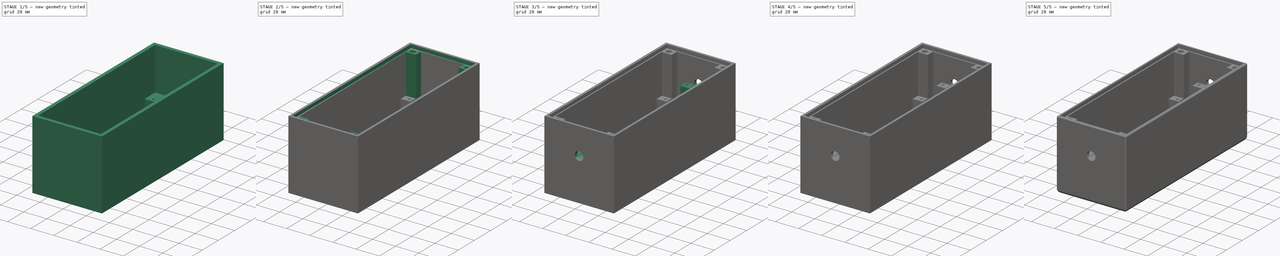
[diagram: build sequence overview — one tinted view per stage of 5, left to right]
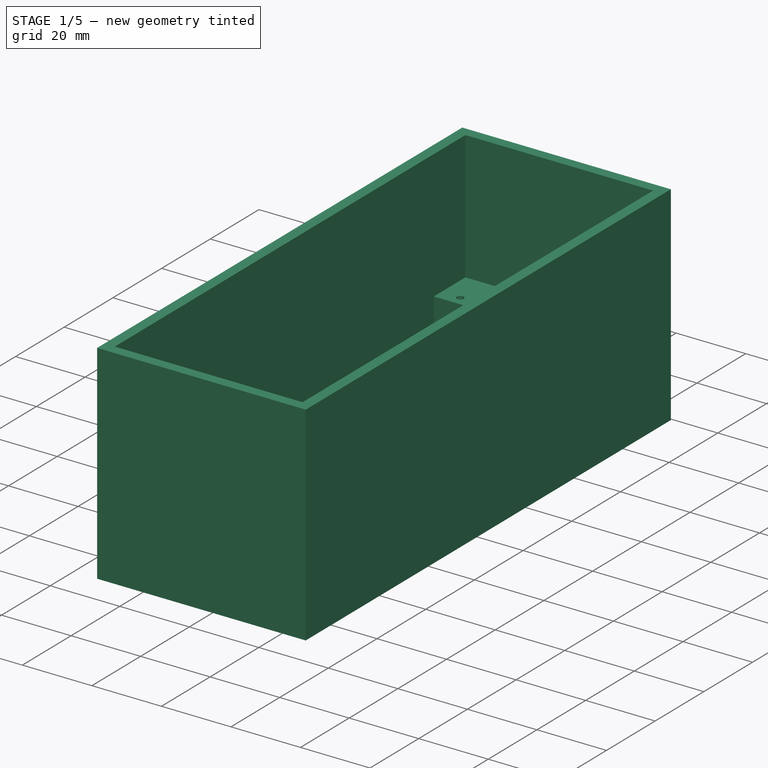
[diagram: stage 1 of 5 — iso view after this stage's code; geometry added in this stage tinted green]
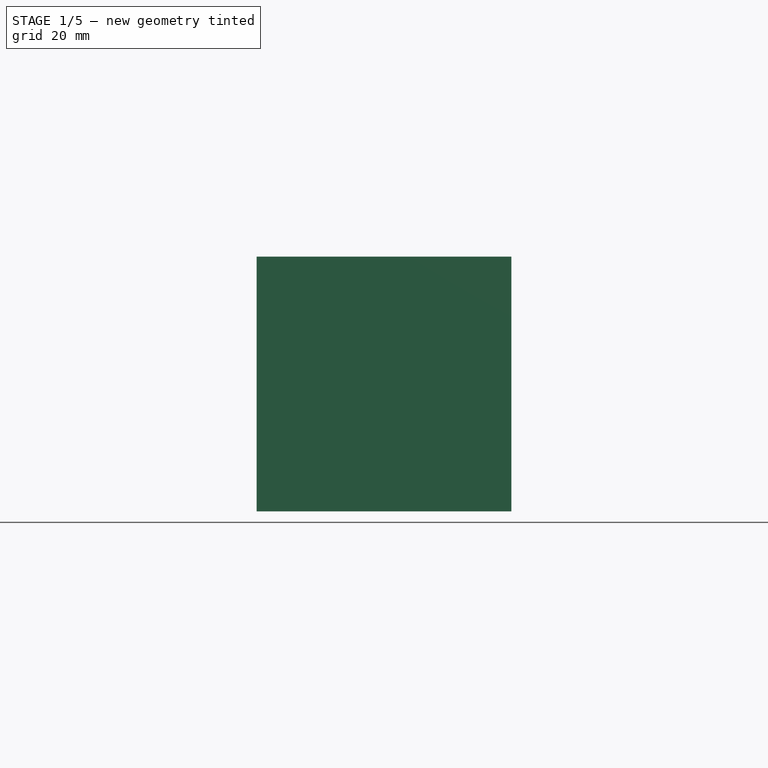
[diagram: stage 1 of 5 — front view after this stage's code; geometry added in this stage tinted green]
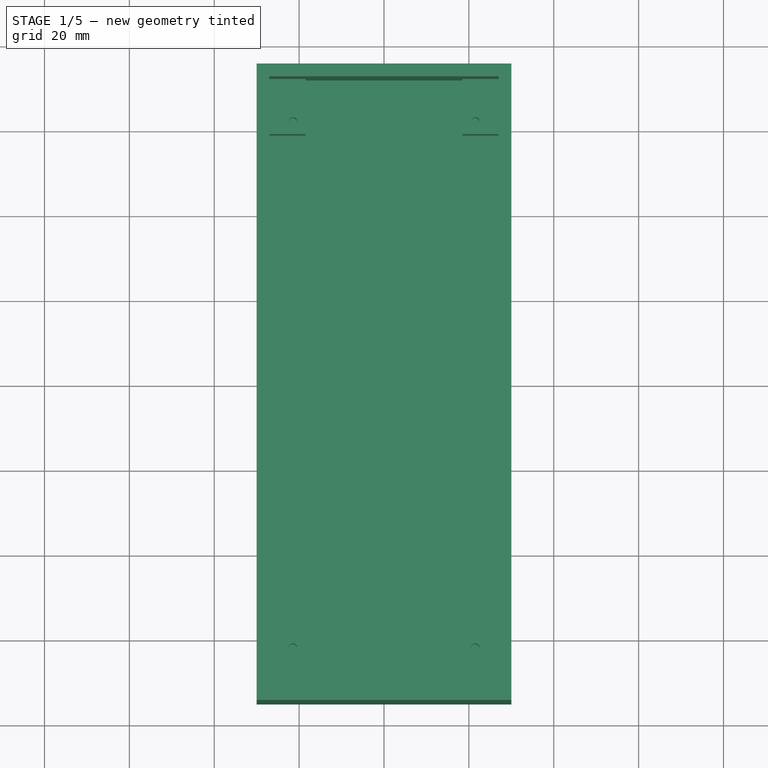
[diagram: stage 1 of 5 — top view after this stage's code; geometry added in this stage tinted green]
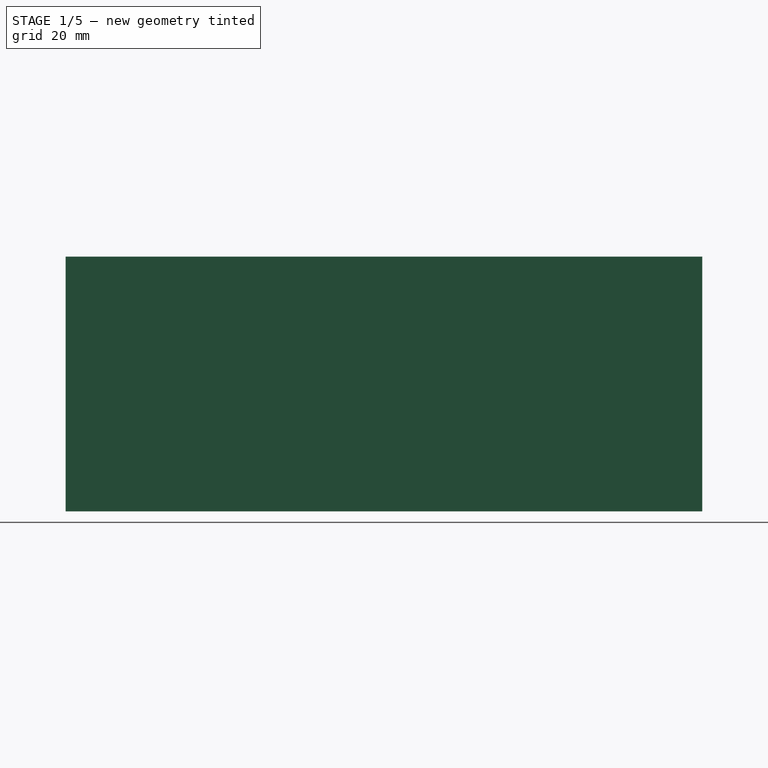
[diagram: stage 1 of 5 — right view after this stage's code; geometry added in this stage tinted green]
FCSTD DOCUMENT  (FreeCAD 0.19R24276 (Git))
Label: eBike_12v_charger
License: All rights reserved
LicenseURL: http://en.wikipedia.org/wiki/All_rights_reserved
objects: Sketcher::SketchObject×12, PartDesign::Pocket×8, PartDesign::Pad×4, PartDesign::Fillet×3, PartDesign::LinearPattern×2, PartDesign::Chamfer×1, PartDesign::Body×1
note: 47 computed .brp shape members not serialized (recipe doc carries the construction recipe); baked Part::Feature solids carry a one-line shape summary decoded from their .brp

FEATURE [Sketcher::SketchObject] Sketch
  FullyConstrained = true
  MapMode = 5
  Support = -> [XY_Plane]
  sketch-geometry (4):
    g0: LineSegment StartX=-30 StartY=75 StartZ=0 EndX=30 EndY=75 EndZ=0
    g1: LineSegment StartX=30 StartY=75 StartZ=0 EndX=30 EndY=-75 EndZ=0
    g2: LineSegment StartX=30 StartY=-75 StartZ=0 EndX=-30 EndY=-75 EndZ=0
    g3: LineSegment StartX=-30 StartY=-75 StartZ=0 EndX=-30 EndY=75 EndZ=0
  constraints (10):
    c: Coincident(g0,g1)
    c: Coincident(g1,g2)
    c: Coincident(g2,g3)
    c: Coincident(g3,g0)
    c: Horizontal(g2)
    c: Vertical(g3)
    c: DistanceX(g0,g0) = 60
    c: DistanceY(g1,g1) = 150
    c: Symmetric(g0,g0,g-2)
    c: Symmetric(g1,g0,g-1)
FEATURE [PartDesign::Pad] Pad
  Direction = (1,1,1)
  Length = 60
  Length2 = 100
  Profile = -> Sketch
  Type = 0
FEATURE [Sketcher::SketchObject] Sketch001
  FullyConstrained = true
  MapMode = 5
  Placement = pos=(0,0,60) rot=(0,0,1;0rad)
  Support = -> [Pad]
  sketch-geometry (4):
    g0: LineSegment StartX=-27 StartY=72 StartZ=0 EndX=27 EndY=72 EndZ=0
    g1: LineSegment StartX=27 StartY=72 StartZ=0 EndX=27 EndY=-72 EndZ=0
    g2: LineSegment StartX=27 StartY=-72 StartZ=0 EndX=-27 EndY=-72 EndZ=0
    g3: LineSegment StartX=-27 StartY=-72 StartZ=0 EndX=-27 EndY=72 EndZ=0
  constraints (10):
    c: Coincident(g0,g1)
    c: Coincident(g1,g2)
    c: Coincident(g2,g3)
    c: Coincident(g3,g0)
    c: Horizontal(g2)
    c: Vertical(g3)
    c: DistanceX(g0,g0) = 54
    c: DistanceY(g1,g1) = 144
    c: Symmetric(g0,g0,g-2)
    c: Symmetric(g0,g1,g-1)
FEATURE [PartDesign::Pocket] Pocket
  BaseFeature = -> Pad
  Length = 57
  Length2 = 100
  Profile = -> Sketch001
  Type = 0
FEATURE [Sketcher::SketchObject] Sketch002
  ExternalGeometry = -> [Pocket]
  FullyConstrained = true
  MapMode = 5
  Placement = pos=(0,0,3) rot=(0,0,1;0rad)
  Support = -> [Pocket]
  sketch-geometry (16):
    g0: LineSegment StartX=27 StartY=72 StartZ=0 EndX=18.5 EndY=72 EndZ=0
    g1: LineSegment StartX=18.5 StartY=72 StartZ=0 EndX=18.5 EndY=59 EndZ=0
    g2: LineSegment StartX=18.5 StartY=59 StartZ=0 EndX=27 EndY=59 EndZ=0
    g3: LineSegment StartX=27 StartY=59 StartZ=0 EndX=27 EndY=72 EndZ=0
    g4: LineSegment StartX=27 StartY=-72 StartZ=0 EndX=18.5 EndY=-72 EndZ=0
    g5: LineSegment StartX=18.5 StartY=-72 StartZ=0 EndX=18.5 EndY=-59 EndZ=0
    g6: LineSegment StartX=18.5 StartY=-59 StartZ=0 EndX=27 EndY=-59 EndZ=0
    g7: LineSegment StartX=27 StartY=-59 StartZ=0 EndX=27 EndY=-72 EndZ=0
    g8: LineSegment StartX=-27 StartY=-72 StartZ=0 EndX=-18.5 EndY=-72 EndZ=0
    g9: LineSegment StartX=-18.5 StartY=-72 StartZ=0 EndX=-18.5 EndY=-59 EndZ=0
    g10: LineSegment StartX=-18.5 StartY=-59 StartZ=0 EndX=-27 EndY=-59 EndZ=0
    g11: LineSegment StartX=-27 StartY=-59 StartZ=0 EndX=-27 EndY=-72 EndZ=0
    g12: LineSegment StartX=-27 StartY=72 StartZ=0 EndX=-18.5 EndY=72 EndZ=0
    g13: LineSegment StartX=-18.5 StartY=72 StartZ=0 EndX=-18.5 EndY=59 EndZ=0
    g14: LineSegment StartX=-18.5 StartY=59 StartZ=0 EndX=-27 EndY=59 EndZ=0
    g15: LineSegment StartX=-27 StartY=59 StartZ=0 EndX=-27 EndY=72 EndZ=0
  constraints (44):
    c: Coincident(g0,g1)
    c: Coincident(g1,g2)
    c: Coincident(g2,g3)
    c: Coincident(g3,g0)
    c: Horizontal(g0)
    c: Horizontal(g2)
    c: Vertical(g1)
    c: Vertical(g3)
    c: Coincident(g0,g-4)
    c: Coincident(g4,g5)
    c: Coincident(g5,g6)
    c: Coincident(g6,g7)
    c: Coincident(g7,g4)
    c: Horizontal(g4)
    c: Horizontal(g6)
    c: Vertical(g5)
    c: Vertical(g7)
    c: Coincident(g4,g-4)
    c: Coincident(g8,g9)
    c: Coincident(g9,g10)
    c: Coincident(g10,g11)
    c: Coincident(g11,g8)
    c: Horizontal(g8)
    c: Horizontal(g10)
    c: Vertical(g9)
    c: Vertical(g11)
    c: Coincident(g8,g-3)
    c: Coincident(g12,g13)
    c: Coincident(g13,g14)
    c: Coincident(g14,g15)
    c: Coincident(g15,g12)
    c: Horizontal(g12)
    c: Horizontal(g14)
    c: Vertical(g13)
    c: Vertical(g15)
    c: Coincident(g12,g-3)
    c: DistanceX(g14,g14) = 8.5
    c: Equal(g2,g6)
    c: Equal(g6,g10)
    c: DistanceY(g13,g13) = 13
    c: Equal(g13,g1)
    c: Equal(g1,g9)
    c: Equal(g9,g5)
    c: Equal(g14,g2)
FEATURE [PartDesign::Pad] Pad001
  BaseFeature = -> Pocket
  Direction = (1,1,1)
  Length = 20
  Length2 = 100
  Profile = -> Sketch002
  Type = 0
FEATURE [Sketcher::SketchObject] Sketch003
  FullyConstrained = true
  MapMode = 5
  Placement = pos=(0,0,23) rot=(0,0,1;0rad)
  Support = -> [Pad001]
  sketch-geometry (8):
    g0: LineSegment StartX=-21.5 StartY=62 StartZ=0 EndX=21.5 EndY=62 EndZ=0
    g1: LineSegment StartX=21.5 StartY=62 StartZ=0 EndX=21.5 EndY=-62 EndZ=0
    g2: LineSegment StartX=21.5 StartY=-62 StartZ=0 EndX=-21.5 EndY=-62 EndZ=0
    g3: LineSegment StartX=-21.5 StartY=-62 StartZ=0 EndX=-21.5 EndY=62 EndZ=0
    g4: Circle CenterX=-21.5 CenterY=62 CenterZ=0 NormalX=0 NormalY=0 NormalZ=1 AngleXU=0 Radius=1
    g5: Circle CenterX=21.5 CenterY=62 CenterZ=0 NormalX=0 NormalY=0 NormalZ=1 AngleXU=0 Radius=1
    g6: Circle CenterX=-21.5 CenterY=-62 CenterZ=0 NormalX=0 NormalY=0 NormalZ=1 AngleXU=0 Radius=1
    g7: Circle CenterX=21.5 CenterY=-62 CenterZ=0 NormalX=0 NormalY=0 NormalZ=1 AngleXU=0 Radius=1
  constraints (18):
    c: Coincident(g0,g1)
    c: Coincident(g1,g2)
    c: Coincident(g2,g3)
    c: Coincident(g3,g0)
    c: Horizontal(g2)
    c: Vertical(g3)
    c: DistanceX(g0,g0) = 43
    c: DistanceY(g1,g1) = 124
    c: Symmetric(g0,g0,g-2)
    c: Symmetric(g0,g1,g-1)
    c: Coincident(g4,g0)
    c: Coincident(g5,g0)
    c: Coincident(g6,g2)
    c: Coincident(g7,g1)
    c: Radius(g6) = 1
    c: Equal(g6,g7)
    c: Equal(g6,g5)
    c: Equal(g6,g4)
FEATURE [PartDesign::Pocket] Pocket001  label="schroefgaten"
  BaseFeature = -> Pad001
  Length = 11
  Length2 = 100
  Profile = -> Sketch003
  Type = 0
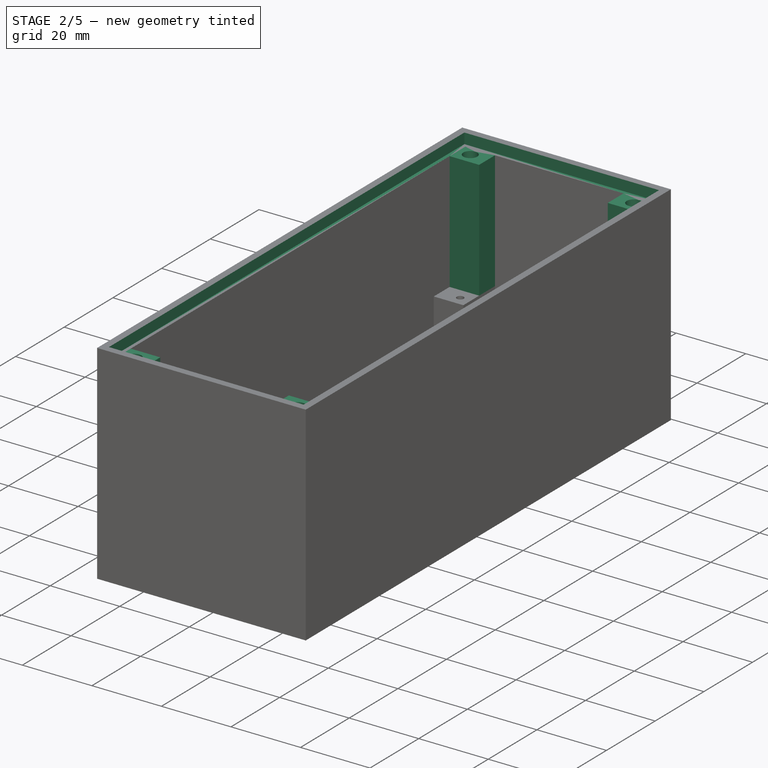
[diagram: stage 2 of 5 — iso view after this stage's code; geometry added in this stage tinted green]
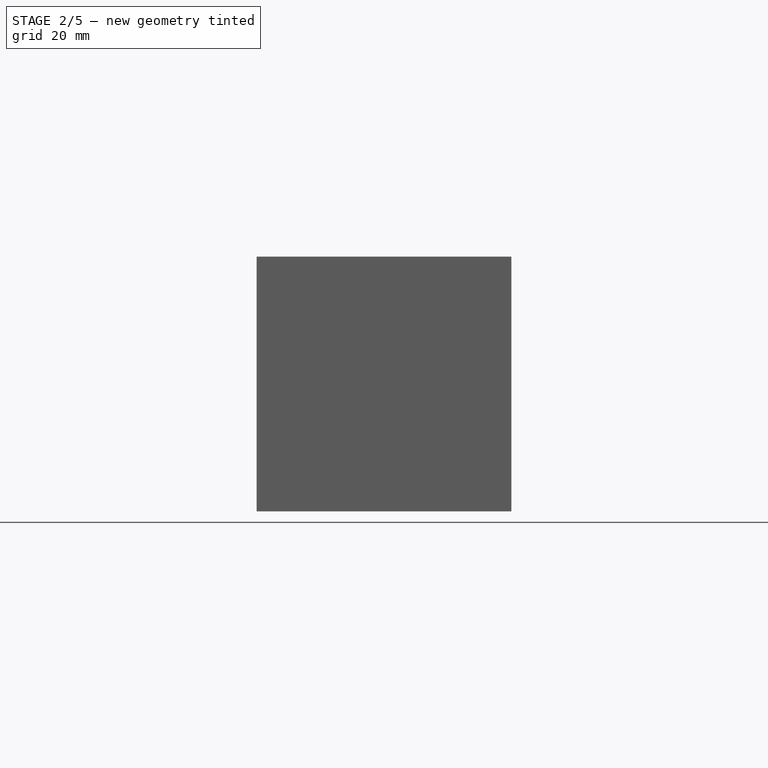
[diagram: stage 2 of 5 — front view after this stage's code; geometry added in this stage tinted green]
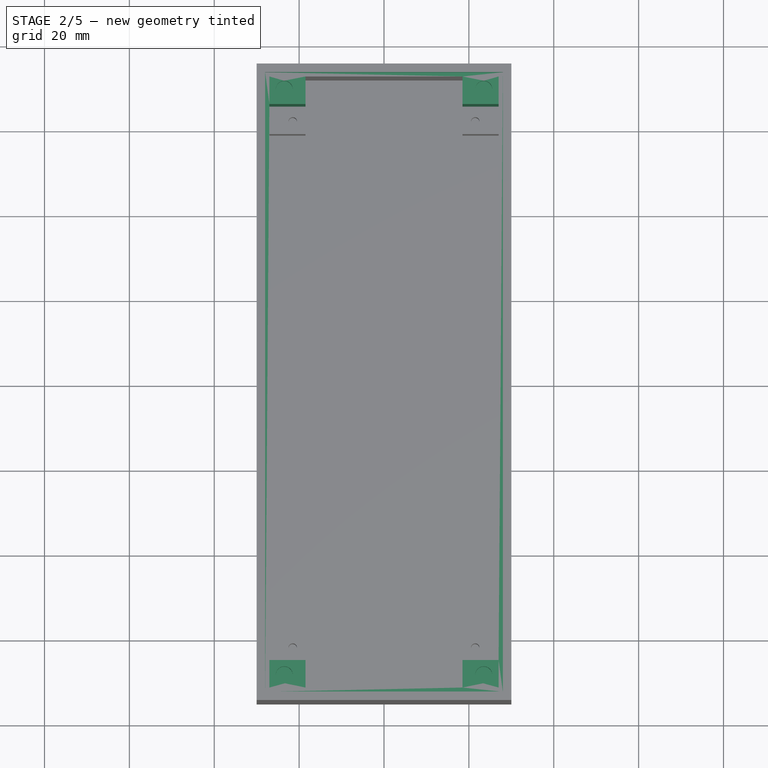
[diagram: stage 2 of 5 — top view after this stage's code; geometry added in this stage tinted green]
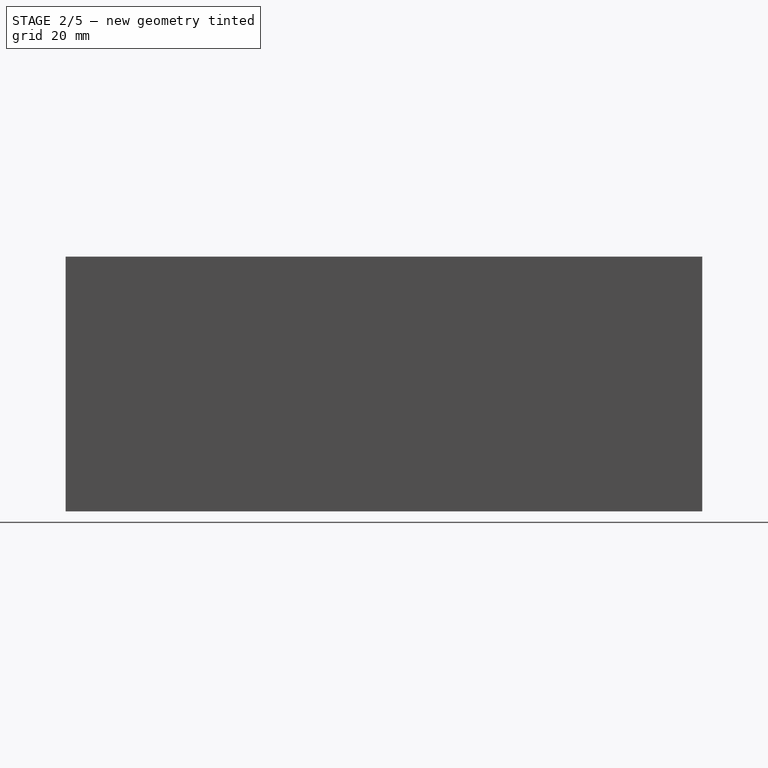
[diagram: stage 2 of 5 — right view after this stage's code; geometry added in this stage tinted green]
FEATURE [Sketcher::SketchObject] Sketch004
  ExternalGeometry = -> [Pocket001]
  FullyConstrained = true
  MapMode = 5
  Placement = pos=(0,0,23) rot=(0,0,1;0rad)
  Support = -> [Pocket001]
  sketch-geometry (16):
    g0: LineSegment StartX=-18.5 StartY=72 StartZ=0 EndX=-27 EndY=72 EndZ=0
    g1: LineSegment StartX=-27 StartY=72 StartZ=0 EndX=-27 EndY=65.5 EndZ=0
    g2: LineSegment StartX=-27 StartY=65.5 StartZ=0 EndX=-18.5 EndY=65.5 EndZ=0
    g3: LineSegment StartX=-18.5 StartY=65.5 StartZ=0 EndX=-18.5 EndY=72 EndZ=0
    g4: LineSegment StartX=18.5 StartY=72 StartZ=0 EndX=27 EndY=72 EndZ=0
    g5: LineSegment StartX=27 StartY=72 StartZ=0 EndX=27 EndY=65.5 EndZ=0
    g6: LineSegment StartX=27 StartY=65.5 StartZ=0 EndX=18.5 EndY=65.5 EndZ=0
    g7: LineSegment StartX=18.5 StartY=65.5 StartZ=0 EndX=18.5 EndY=72 EndZ=0
    g8: LineSegment StartX=-18.5 StartY=-72 StartZ=0 EndX=-27 EndY=-72 EndZ=0
    g9: LineSegment StartX=-27 StartY=-72 StartZ=0 EndX=-27 EndY=-65.5 EndZ=0
    g10: LineSegment StartX=-27 StartY=-65.5 StartZ=0 EndX=-18.5 EndY=-65.5 EndZ=0
    g11: LineSegment StartX=-18.5 StartY=-65.5 StartZ=0 EndX=-18.5 EndY=-72 EndZ=0
    g12: LineSegment StartX=18.5 StartY=-72 StartZ=0 EndX=27 EndY=-72 EndZ=0
    g13: LineSegment StartX=27 StartY=-72 StartZ=0 EndX=27 EndY=-65.5 EndZ=0
    g14: LineSegment StartX=27 StartY=-65.5 StartZ=0 EndX=18.5 EndY=-65.5 EndZ=0
    g15: LineSegment StartX=18.5 StartY=-65.5 StartZ=0 EndX=18.5 EndY=-72 EndZ=0
  constraints (44):
    c: Coincident(g0,g1)
    c: Coincident(g1,g2)
    c: Coincident(g2,g3)
    c: Coincident(g3,g0)
    c: Horizontal(g0)
    c: Horizontal(g2)
    c: Vertical(g1)
    c: Vertical(g3)
    c: Coincident(g0,g-7)
    c: PointOnObject(g1,g-3)
    c: Coincident(g4,g5)
    c: Coincident(g5,g6)
    c: Coincident(g6,g7)
    c: Coincident(g7,g4)
    c: Horizontal(g4)
    c: Horizontal(g6)
    c: Vertical(g5)
    c: Vertical(g7)
    c: Coincident(g4,g-8)
    c: PointOnObject(g5,g-5)
    c: Coincident(g8,g9)
    c: Coincident(g9,g10)
    c: Coincident(g10,g11)
    c: Coincident(g11,g8)
    c: Horizontal(g8)
    c: Horizontal(g10)
    c: Vertical(g9)
    c: Vertical(g11)
    c: Coincident(g8,g-9)
    c: PointOnObject(g9,g-4)
    c: Coincident(g12,g13)
    c: Coincident(g13,g14)
    c: Coincident(g14,g15)
    c: Coincident(g15,g12)
    c: Horizontal(g12)
    c: Horizontal(g14)
    c: Vertical(g13)
    c: Vertical(g15)
    c: Coincident(g12,g-10)
    c: PointOnObject(g13,g-6)
    c: DistanceY(g3,g3) = 6.5
    c: Equal(g3,g7)
    c: Equal(g7,g15)
    c: Equal(g15,g11)
FEATURE [PartDesign::Pad] Pad002
  BaseFeature = -> Pocket001
  Direction = (1,1,1)
  Length = 34
  Length2 = 100
  Profile = -> Sketch004
  Type = 0
FEATURE [Sketcher::SketchObject] Sketch005
  FullyConstrained = true
  MapMode = 5
  Placement = pos=(0,0,57) rot=(0,0,1;0rad)
  Support = -> [Pad002]
  sketch-geometry (8):
    g0: LineSegment StartX=-23.5 StartY=69 StartZ=0 EndX=23.5 EndY=69 EndZ=0
    g1: LineSegment StartX=23.5 StartY=69 StartZ=0 EndX=23.5 EndY=-69 EndZ=0
    g2: LineSegment StartX=23.5 StartY=-69 StartZ=0 EndX=-23.5 EndY=-69 EndZ=0
    g3: LineSegment StartX=-23.5 StartY=-69 StartZ=0 EndX=-23.5 EndY=69 EndZ=0
    g4: Circle CenterX=-23.5 CenterY=69 CenterZ=0 NormalX=0 NormalY=0 NormalZ=1 AngleXU=0 Radius=2
    g5: Circle CenterX=23.5 CenterY=69 CenterZ=0 NormalX=0 NormalY=0 NormalZ=1 AngleXU=0 Radius=2
    g6: Circle CenterX=23.5 CenterY=-69 CenterZ=0 NormalX=0 NormalY=0 NormalZ=1 AngleXU=0 Radius=2
    g7: Circle CenterX=-23.5 CenterY=-69 CenterZ=0 NormalX=0 NormalY=0 NormalZ=1 AngleXU=0 Radius=2
  constraints (18):
    c: Coincident(g0,g1)
    c: Coincident(g1,g2)
    c: Coincident(g2,g3)
    c: Coincident(g3,g0)
    c: Horizontal(g2)
    c: Vertical(g3)
    c: DistanceY(g1,g1) = 138
    c: DistanceX(g0,g0) = 47
    c: Symmetric(g0,g0,g-2)
    c: Symmetric(g0,g1,g-1)
    c: Coincident(g4,g0)
    c: Coincident(g5,g0)
    c: Coincident(g6,g1)
    c: Coincident(g7,g2)
    c: Radius(g4) = 2
    c: Equal(g4,g5)
    c: Equal(g4,g6)
    c: Equal(g4,g7)
FEATURE [PartDesign::Pocket] Pocket002  label="insert_gaten"
  BaseFeature = -> Pad002
  Length = 5
  Length2 = 100
  Profile = -> Sketch005
  Type = 0
FEATURE [Sketcher::SketchObject] Sketch006
  FullyConstrained = true
  MapMode = 5
  Placement = pos=(0,0,60) rot=(0,0,1;0rad)
  Support = -> [Pocket002]
  sketch-geometry (4):
    g0: LineSegment StartX=-28 StartY=73 StartZ=0 EndX=28 EndY=73 EndZ=0
    g1: LineSegment StartX=28 StartY=73 StartZ=0 EndX=28 EndY=-73 EndZ=0
    g2: LineSegment StartX=28 StartY=-73 StartZ=0 EndX=-28 EndY=-73 EndZ=0
    g3: LineSegment StartX=-28 StartY=-73 StartZ=0 EndX=-28 EndY=73 EndZ=0
  constraints (10):
    c: Coincident(g0,g1)
    c: Coincident(g1,g2)
    c: Coincident(g2,g3)
    c: Coincident(g3,g0)
    c: Horizontal(g2)
    c: Vertical(g3)
    c: DistanceX(g0,g0) = 56
    c: DistanceY(g1,g1) = 146
    c: Symmetric(g0,g0,g-2)
    c: Symmetric(g0,g1,g-1)
FEATURE [PartDesign::Pocket] Pocket003
  BaseFeature = -> Pocket002
  Length = 3
  Length2 = 100
  Profile = -> Sketch006
  Type = 0
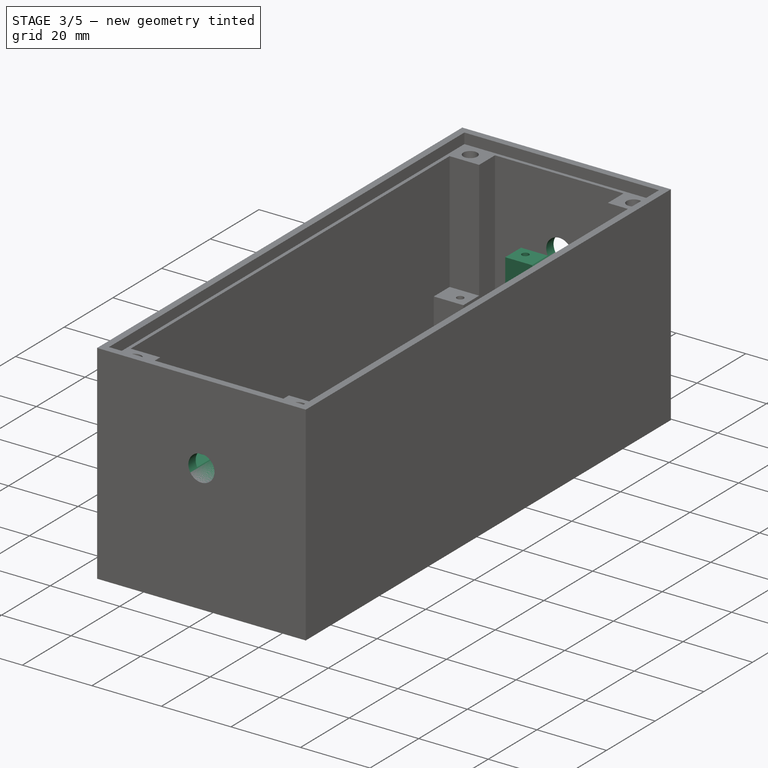
[diagram: stage 3 of 5 — iso view after this stage's code; geometry added in this stage tinted green]
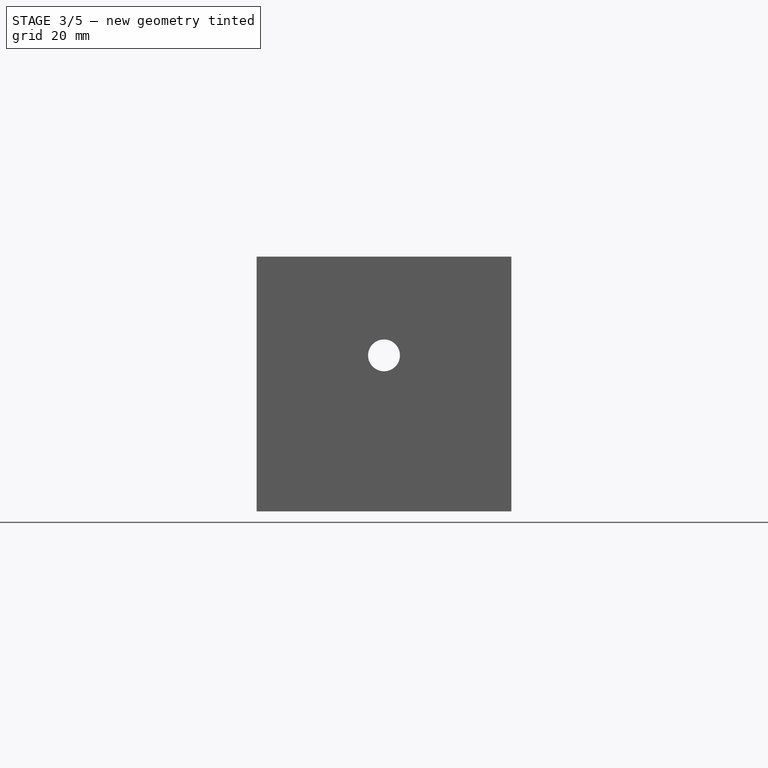
[diagram: stage 3 of 5 — front view after this stage's code; geometry added in this stage tinted green]
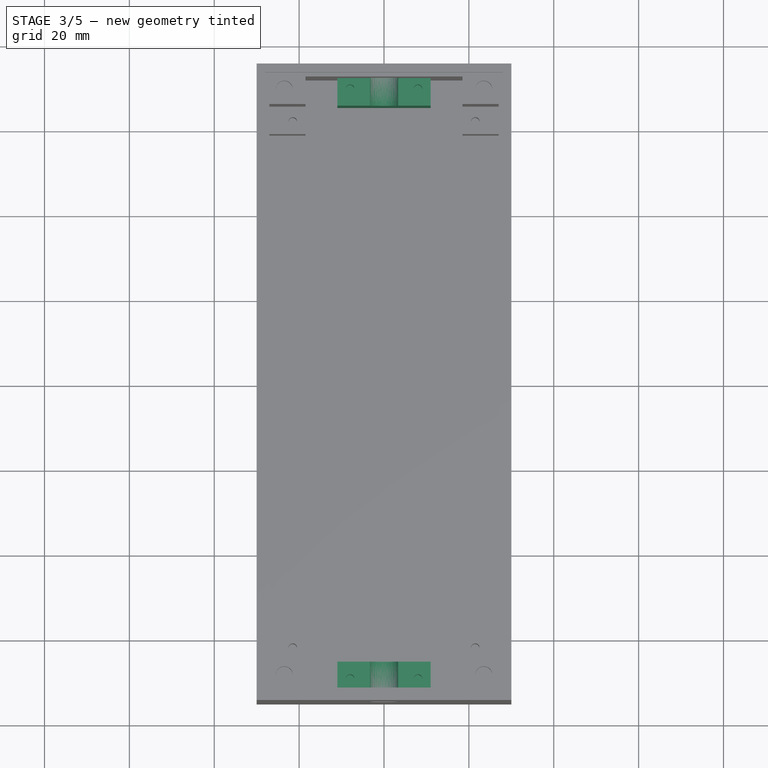
[diagram: stage 3 of 5 — top view after this stage's code; geometry added in this stage tinted green]
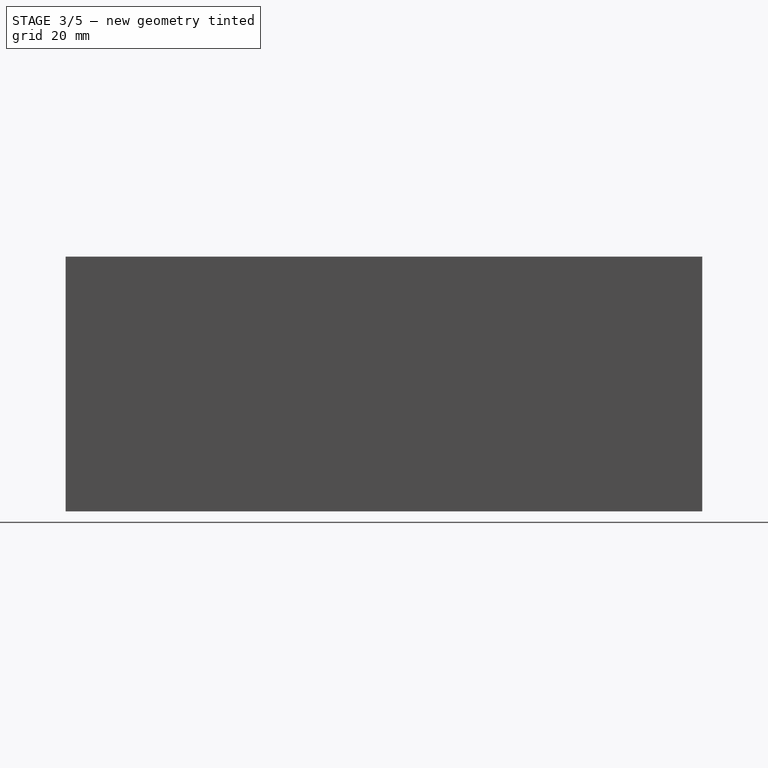
[diagram: stage 3 of 5 — right view after this stage's code; geometry added in this stage tinted green]
FEATURE [Sketcher::SketchObject] Sketch007
  ExternalGeometry = -> [Pocket003]
  FullyConstrained = true
  MapMode = 5
  Placement = pos=(0,0,3) rot=(0,0,1;0rad)
  Support = -> [Pocket003]
  sketch-geometry (8):
    g0: LineSegment StartX=-11 StartY=72 StartZ=0 EndX=11 EndY=72 EndZ=0
    g1: LineSegment StartX=11 StartY=72 StartZ=0 EndX=11 EndY=65.5 EndZ=0
    g2: LineSegment StartX=11 StartY=65.5 StartZ=0 EndX=-11 EndY=65.5 EndZ=0
    g3: LineSegment StartX=-11 StartY=65.5 StartZ=0 EndX=-11 EndY=72 EndZ=0
    g4: LineSegment StartX=-11 StartY=-72 StartZ=0 EndX=11 EndY=-72 EndZ=0
    g5: LineSegment StartX=11 StartY=-72 StartZ=0 EndX=11 EndY=-65.5 EndZ=0
    g6: LineSegment StartX=11 StartY=-65.5 StartZ=0 EndX=-11 EndY=-65.5 EndZ=0
    g7: LineSegment StartX=-11 StartY=-65.5 StartZ=0 EndX=-11 EndY=-72 EndZ=0
  constraints (22):
    c: Coincident(g0,g1)
    c: Coincident(g1,g2)
    c: Coincident(g2,g3)
    c: Coincident(g3,g0)
    c: Horizontal(g0)
    c: Vertical(g1)
    c: Vertical(g3)
    c: PointOnObject(g0,g-3)
    c: Coincident(g4,g5)
    c: Coincident(g5,g6)
    c: Coincident(g6,g7)
    c: Coincident(g7,g4)
    c: Horizontal(g4)
    c: Vertical(g5)
    c: Vertical(g7)
    c: PointOnObject(g4,g-4)
    c: DistanceY(g1,g1) = 6.5
    c: Equal(g1,g5)
    c: DistanceX(g2,g2) = 22
    c: Equal(g2,g6)
    c: Symmetric(g2,g1,g-2)
    c: Symmetric(g6,g5,g-2)
FEATURE [PartDesign::Pad] Pad003  label="snoerblok_32mm"
  BaseFeature = -> Pocket003
  Direction = (1,1,1)
  Length = 32
  Length2 = 100
  Profile = -> Sketch007
  Type = 0
FEATURE [Sketcher::SketchObject] Sketch008
  FullyConstrained = true
  MapMode = 5
  Placement = pos=(0,0,35) rot=(0,0,1;0rad)
  Support = -> [Pad003]
  sketch-geometry (8):
    g0: LineSegment StartX=-8 StartY=69.5 StartZ=0 EndX=8 EndY=69.5 EndZ=0
    g1: LineSegment StartX=8 StartY=69.5 StartZ=0 EndX=8 EndY=-69.5 EndZ=0
    g2: LineSegment StartX=8 StartY=-69.5 StartZ=0 EndX=-8 EndY=-69.5 EndZ=0
    g3: LineSegment StartX=-8 StartY=-69.5 StartZ=0 EndX=-8 EndY=69.5 EndZ=0
    g4: Circle CenterX=-8 CenterY=69.5 CenterZ=0 NormalX=0 NormalY=0 NormalZ=1 AngleXU=0 Radius=1
    g5: Circle CenterX=8 CenterY=69.5 CenterZ=0 NormalX=0 NormalY=0 NormalZ=1 AngleXU=0 Radius=1
    g6: Circle CenterX=-8 CenterY=-69.5 CenterZ=0 NormalX=0 NormalY=0 NormalZ=1 AngleXU=0 Radius=1
    g7: Circle CenterX=8 CenterY=-69.5 CenterZ=0 NormalX=0 NormalY=0 NormalZ=1 AngleXU=0 Radius=1
  constraints (18):
    c: Coincident(g0,g1)
    c: Coincident(g1,g2)
    c: Coincident(g2,g3)
    c: Coincident(g3,g0)
    c: Horizontal(g2)
    c: Vertical(g3)
    c: DistanceY(g1,g1) = 139
    c: DistanceX(g0,g0) = 16
    c: Symmetric(g0,g0,g-2)
    c: Symmetric(g0,g1,g-1)
    c: Coincident(g4,g0)
    c: Coincident(g5,g0)
    c: Coincident(g6,g2)
    c: Coincident(g7,g1)
    c: Radius(g4) = 1
    c: Equal(g4,g5)
    c: Equal(g4,g6)
    c: Equal(g4,g7)
FEATURE [PartDesign::Pocket] Pocket004  label="snoer_schroefgaten"
  BaseFeature = -> Pad003
  Length = 8
  Length2 = 100
  Profile = -> Sketch008
  Type = 0
FEATURE [Sketcher::SketchObject] Sketch009
  FullyConstrained = true
  MapMode = 5
  Placement = pos=(0,-75,0) rot=(1,0,0;1.5708rad)
  Support = -> [Pocket004]
  sketch-geometry (1):
    g0: Circle CenterX=0 CenterY=36.75 CenterZ=0 NormalX=0 NormalY=0 NormalZ=1 AngleXU=0 Radius=3.75
  constraints (3):
    c: PointOnObject(g0,g-2)
    c: Radius(g0) = 3.75
    c: DistanceY(g-1,g0) = 36.75
FEATURE [PartDesign::Pocket] Pocket005  label="snoergat1"
  BaseFeature = -> Pocket004
  Length = 10
  Length2 = 100
  Profile = -> Sketch009
  Type = 0
FEATURE [Sketcher::SketchObject] Sketch010
  FullyConstrained = true
  MapMode = 5
  Placement = pos=(0,75,0) rot=(0,0.707107,0.707107;3.14159rad)
  Support = -> [Pocket005]
  sketch-geometry (1):
    g0: Circle CenterX=0 CenterY=36.75 CenterZ=0 NormalX=0 NormalY=0 NormalZ=1 AngleXU=0 Radius=3.75
  constraints (3):
    c: PointOnObject(g0,g-2)
    c: Radius(g0) = 3.75
    c: DistanceY(g-1,g0) = 36.75
FEATURE [PartDesign::Pocket] Pocket006  label="snoergat2"
  BaseFeature = -> Pocket005
  Length = 10
  Length2 = 100
  Profile = -> Sketch010
  Type = 0
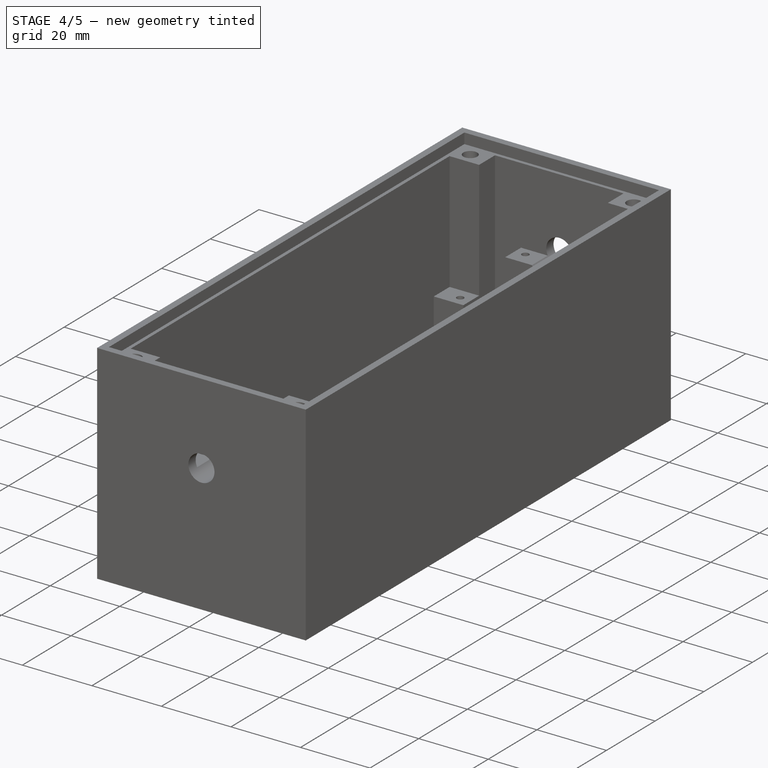
[diagram: stage 4 of 5 — iso view after this stage's code; geometry added in this stage tinted green]
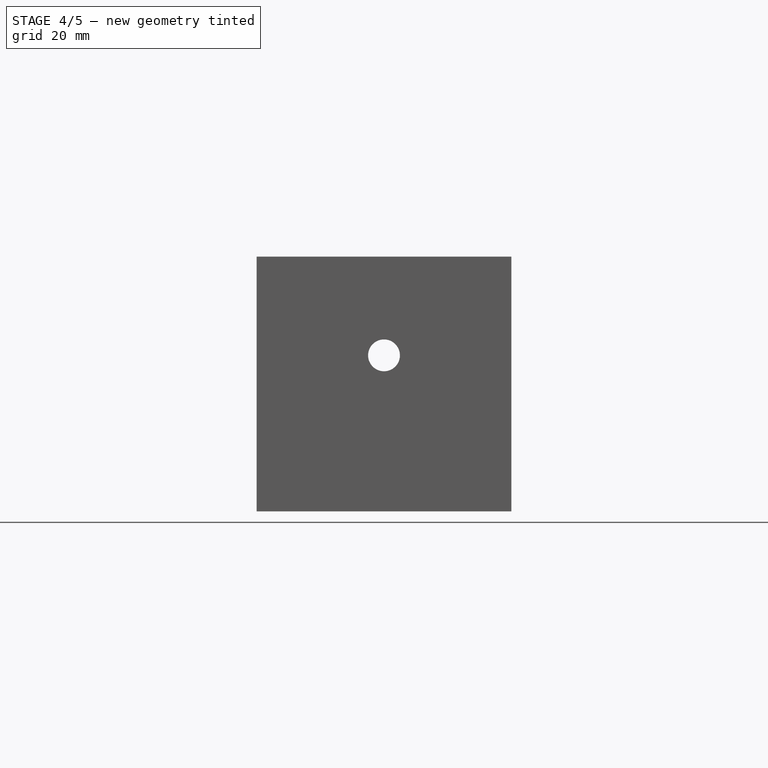
[diagram: stage 4 of 5 — front view after this stage's code; geometry added in this stage tinted green]
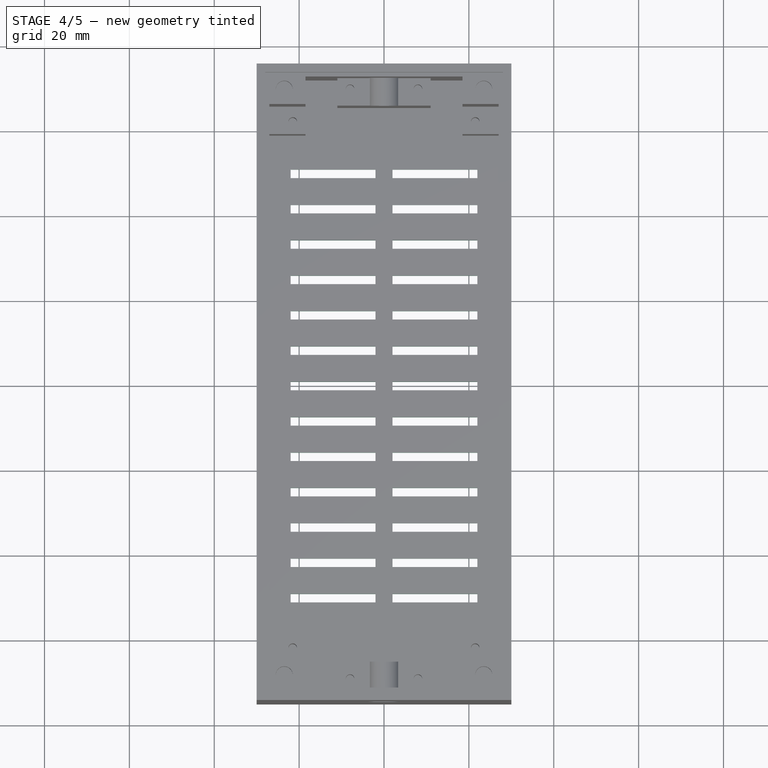
[diagram: stage 4 of 5 — top view after this stage's code; geometry added in this stage tinted green]
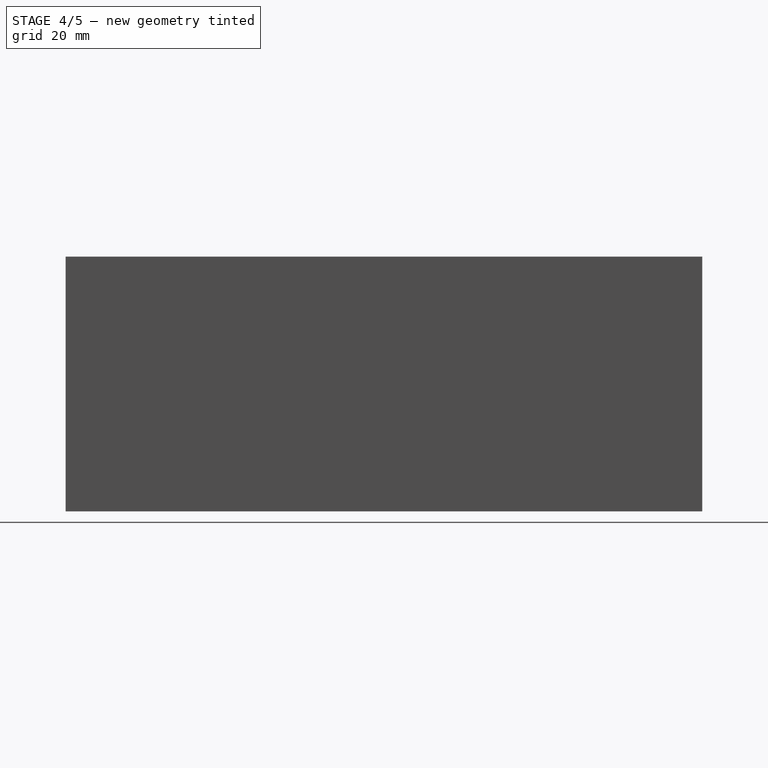
[diagram: stage 4 of 5 — right view after this stage's code; geometry added in this stage tinted green]
FEATURE [Sketcher::SketchObject] Sketch011
  FullyConstrained = true
  MapMode = 5
  Placement = pos=(0,0,0) rot=(1,0,0;3.14159rad)
  Support = -> [Pocket006]
  sketch-geometry (8):
    g0: LineSegment StartX=-22 StartY=1 StartZ=0 EndX=-2 EndY=1 EndZ=0
    g1: LineSegment StartX=-2 StartY=1 StartZ=0 EndX=-2 EndY=-1 EndZ=0
    g2: LineSegment StartX=-2 StartY=-1 StartZ=0 EndX=-22 EndY=-1 EndZ=0
    g3: LineSegment StartX=-22 StartY=-1 StartZ=0 EndX=-22 EndY=1 EndZ=0
    g4: LineSegment StartX=2 StartY=1 StartZ=0 EndX=22 EndY=1 EndZ=0
    g5: LineSegment StartX=22 StartY=1 StartZ=0 EndX=22 EndY=-1 EndZ=0
    g6: LineSegment StartX=22 StartY=-1 StartZ=0 EndX=2 EndY=-1 EndZ=0
    g7: LineSegment StartX=2 StartY=-1 StartZ=0 EndX=2 EndY=1 EndZ=0
  constraints (22):
    c: Coincident(g0,g1)
    c: Coincident(g1,g2)
    c: Coincident(g2,g3)
    c: Coincident(g3,g0)
    c: Horizontal(g0)
    c: Horizontal(g2)
    c: Vertical(g3)
    c: Coincident(g4,g5)
    c: Coincident(g5,g6)
    c: Coincident(g6,g7)
    c: Coincident(g7,g4)
    c: Horizontal(g4)
    c: Horizontal(g6)
    c: Vertical(g5)
    c: DistanceX(g0,g0) = 20
    c: Equal(g0,g4)
    c: DistanceY(g3,g3) = 2
    c: Equal(g3,g5)
    c: DistanceX(g0,g-1) = 2
    c: DistanceX(g-1,g4) = 2
    c: Symmetric(g1,g0,g-1)
    c: Symmetric(g6,g4,g-1)
FEATURE [PartDesign::Pocket] Pocket007
  BaseFeature = -> Pocket006
  Length = 3
  Length2 = 100
  Profile = -> Sketch011
  Type = 0
FEATURE [PartDesign::LinearPattern] LinearPattern
  BaseFeature = -> Pocket007
  Direction = -> Y_Axis
  Length = 50
  Occurrences = 7
  Originals = -> [Pocket007]
FEATURE [PartDesign::LinearPattern] LinearPattern001
  BaseFeature = -> LinearPattern
  Direction = -> Y_Axis
  Length = 50
  Occurrences = 7
  Originals = -> [Pocket007]
  Reversed = true
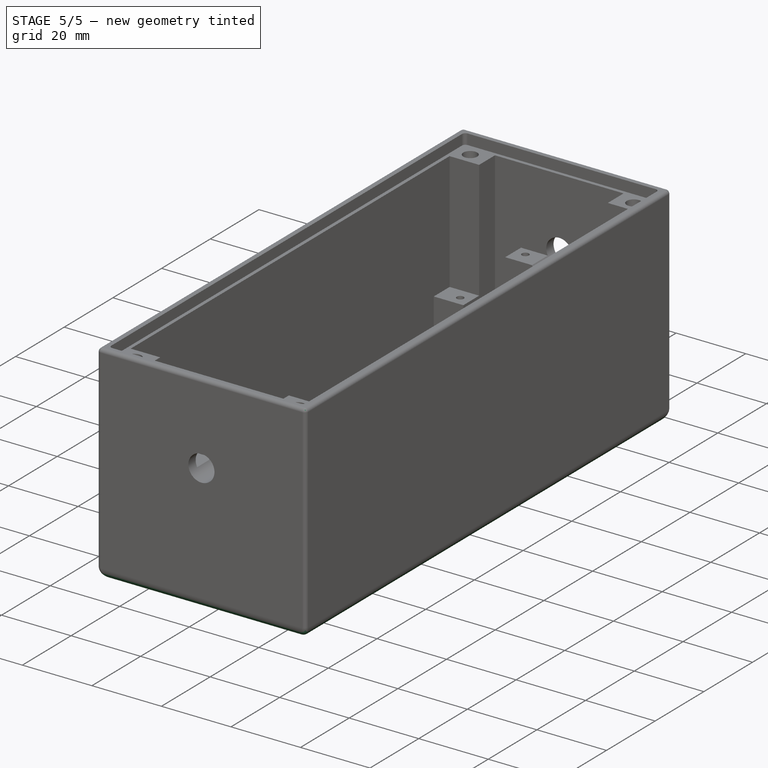
[diagram: stage 5 of 5 — iso view after this stage's code; geometry added in this stage tinted green]
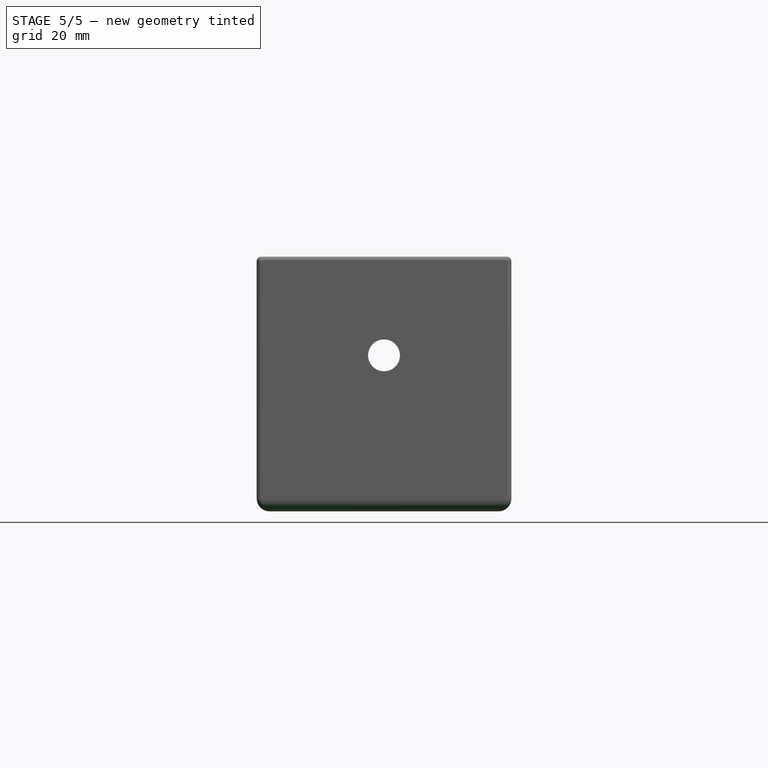
[diagram: stage 5 of 5 — front view after this stage's code; geometry added in this stage tinted green]
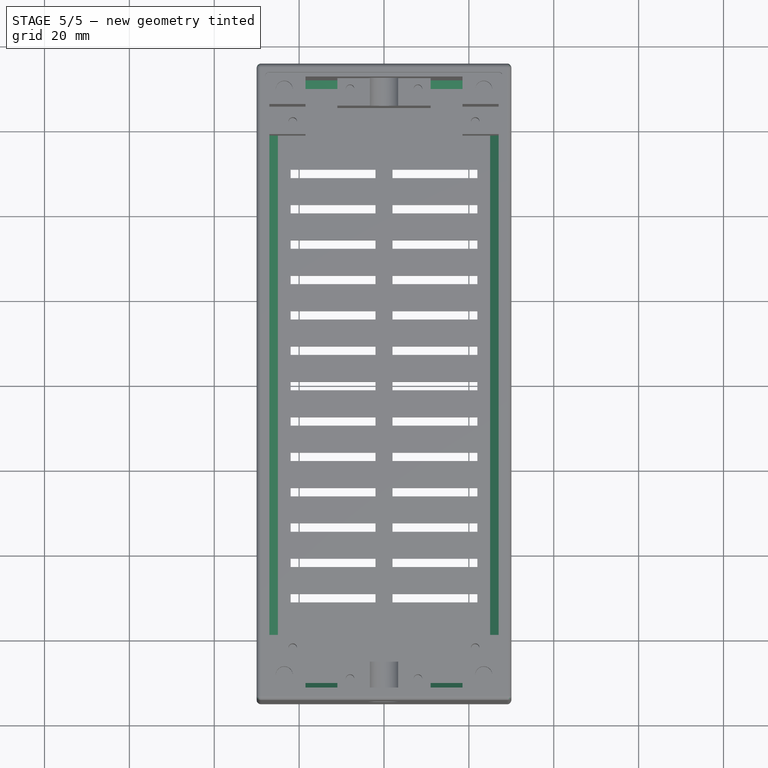
[diagram: stage 5 of 5 — top view after this stage's code; geometry added in this stage tinted green]
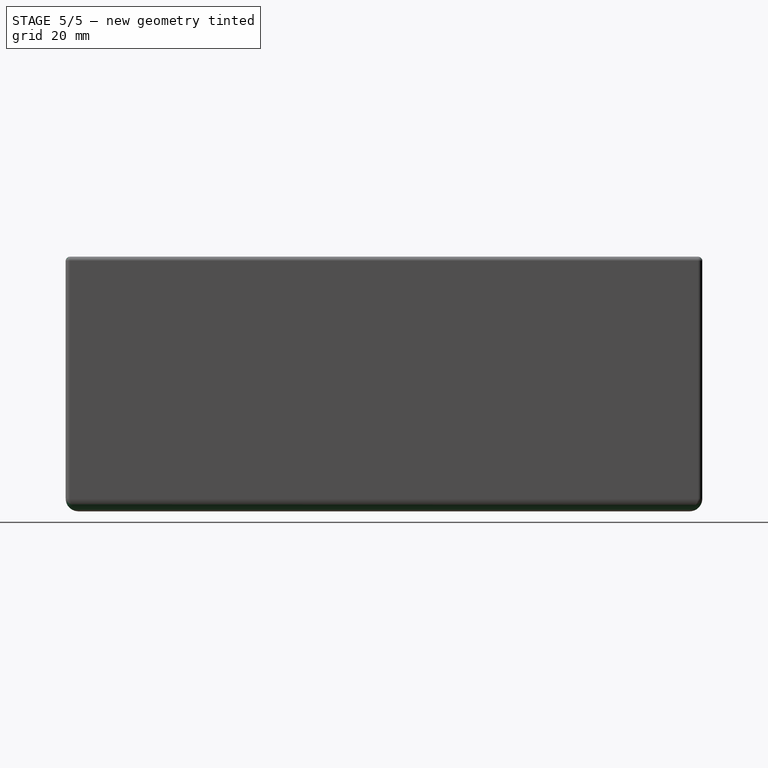
[diagram: stage 5 of 5 — right view after this stage's code; geometry added in this stage tinted green]
FEATURE [PartDesign::Chamfer] Chamfer
  Angle = 45
  Base = -> LinearPattern001 [Edge374,Edge383,Edge353,Edge348,Edge378,Edge386]
  BaseFeature = -> LinearPattern001
  ChamferType = 0
  FlipDirection = false
  Size = 2
  Size2 = 1
  SupportTransform = false
FEATURE [PartDesign::Fillet] Fillet
  Base = -> Chamfer [Edge231,Edge234,Edge233,Edge494,Edge498,Edge475,Edge473,Edge474]
  BaseFeature = -> Chamfer
  Radius = 1
  SupportTransform = false
FEATURE [PartDesign::Fillet] Fillet001
  Base = -> Fillet [Edge12,Edge8,Edge9,Edge1]
  BaseFeature = -> Fillet
  Radius = 3
  SupportTransform = false
FEATURE [PartDesign::Fillet] Fillet002
  Base = -> Fillet001 [Edge396,Edge398,Edge394,Edge393]
  BaseFeature = -> Fillet001
  Radius = 1
  SupportTransform = false
FEATURE [PartDesign::Body] Body
  Group = -> [Sketch,Pad,Sketch001,Pocket,Sketch002,Pad001,Sketch003,Pocket001,Sketch004,Pad002,Sketch005,Pocket002,Sketch006,Pocket003,Sketch007,Pad003,Sketch008,Pocket004,Sketch009,Pocket005,Sketch010,Pocket006,Sketch011,Pocket007,LinearPattern,LinearPattern001,Chamfer,Fillet,Fillet001,Fillet002]
  Origin = -> Origin
  Tip = -> Fillet002
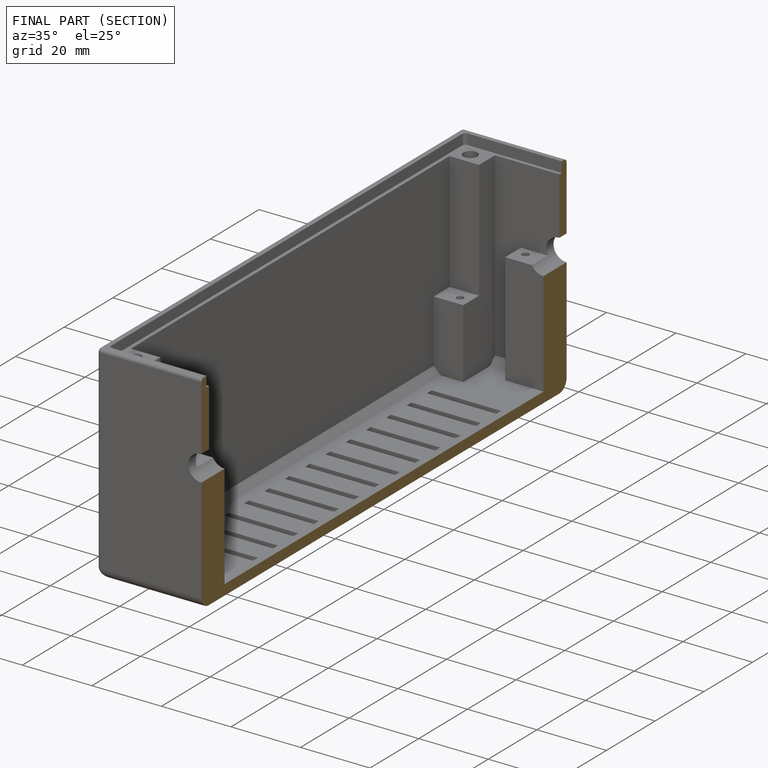
[diagram: finished part — half-section view (interior)]
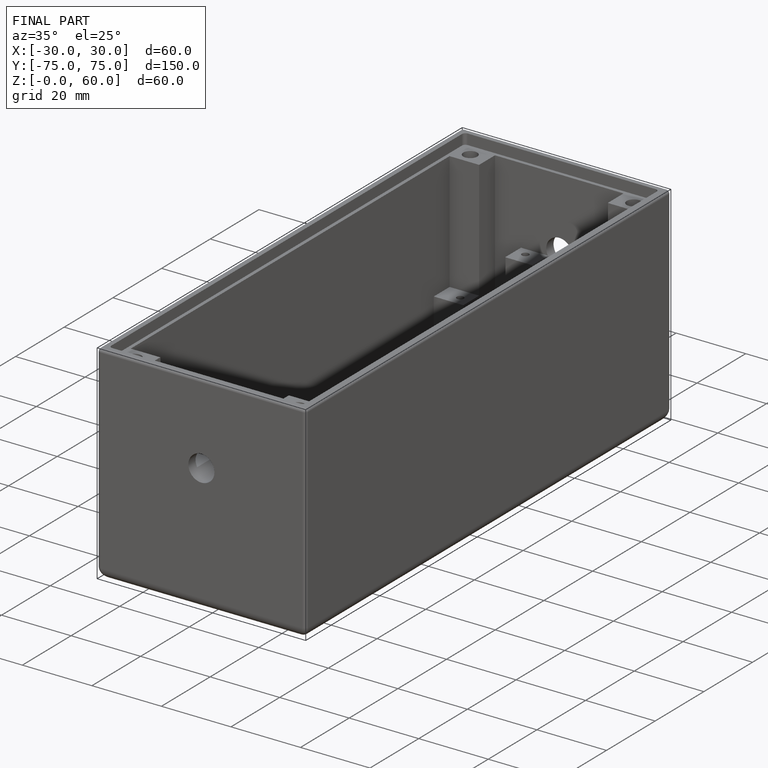
[diagram: finished part — iso view with bounding-box wireframe]
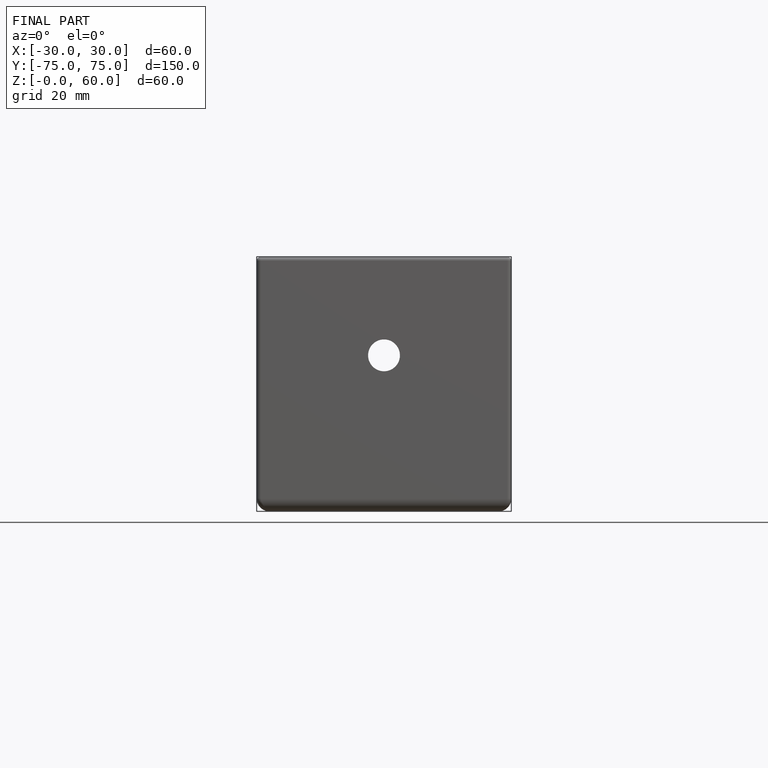
[diagram: finished part — front view with bounding-box wireframe]
